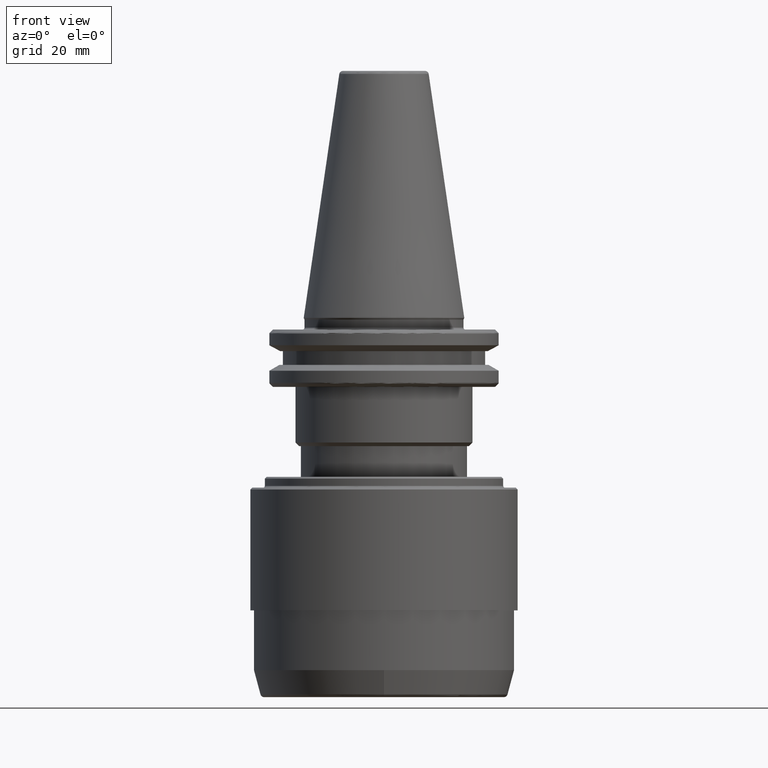
[diagram: clean part render]
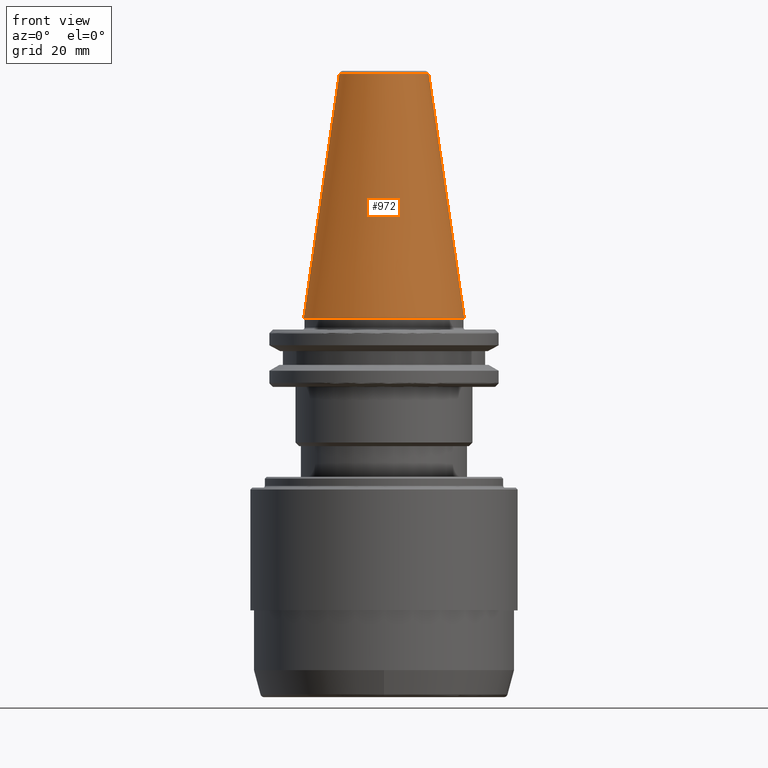
[diagram: same view with one face highlighted and labeled with its STEP entity id]
A machine part, front view. The second image highlights one B-rep face of the part: STEP entity #972.
In plain terms, the highlighted conical surface has half-angle 8.297 deg.
Its self-contained STEP definition (entity closure, byte-faithful):
#211 = DIRECTION ( 'NONE',  ( 0.0000000000000000000, 0.0000000000000000000, -1.000000000000000000 ) ) ;
#257 = DIRECTION ( 'NONE',  ( -1.000000000000000000, 0.0000000000000000000, 0.0000000000000000000 ) ) ;
#521 = CARTESIAN_POINT ( 'NONE',  ( 0.0000000000000000000, 0.0000000000000000000, 0.0000000000000000000 ) ) ;
#574 = EDGE_CURVE ( 'NONE', #2180, #1596, #2056, .T. ) ;
#624 = CARTESIAN_POINT ( 'NONE',  ( -12.37469537611110800, 0.0000000000000000000, 67.54430822726729400 ) ) ;
#696 = CARTESIAN_POINT ( 'NONE',  ( 12.37469537611110800, 2.118620309691396900E-015, 67.54430822726729400 ) ) ;
#803 = EDGE_CURVE ( 'NONE', #1272, #1596, #3130, .T. ) ;
#840 = DIRECTION ( 'NONE',  ( 0.1443082272673070500, 1.767266086135363700E-017, -0.9895327864921743500 ) ) ;
#884 = CARTESIAN_POINT ( 'NONE',  ( 22.22500000000000100, 2.721777511104992800E-015, 0.0000000000000000000 ) ) ;
#972 = ADVANCED_FACE ( 'NONE', ( #2712 ), #3331, .T. ) ;
#1002 = ORIENTED_EDGE ( 'NONE', *, *, #574, .F. ) ;
#1044 = CARTESIAN_POINT ( 'NONE',  ( 0.0000000000000000000, 0.0000000000000000000, 67.54430822726729400 ) ) ;
#1107 = ORIENTED_EDGE ( 'NONE', *, *, #3111, .T. ) ;
#1272 = VERTEX_POINT ( 'NONE', #2844 ) ;
#1276 = DIRECTION ( 'NONE',  ( -1.000000000000000000, 0.0000000000000000000, 6.244223985518314900E-016 ) ) ;
#1286 = DIRECTION ( 'NONE',  ( -0.0000000000000000000, -0.0000000000000000000, 1.000000000000000000 ) ) ;
#1290 = CARTESIAN_POINT ( 'NONE',  ( 0.0000000000000000000, 0.0000000000000000000, 0.0000000000000000000 ) ) ;
#1317 = DIRECTION ( 'NONE',  ( -1.000000000000000000, 0.0000000000000000000, 0.0000000000000000000 ) ) ;
#1321 = AXIS2_PLACEMENT_3D ( 'NONE', #521, #211, #257 ) ;
#1438 = CIRCLE ( 'NONE', #2558, 12.37469537611110800 ) ;
#1476 = ORIENTED_EDGE ( 'NONE', *, *, #2699, .T. ) ;
#1587 = DIRECTION ( 'NONE',  ( -0.1443082272673070500, 0.0000000000000000000, -0.9895327864921743500 ) ) ;
#1596 = VERTEX_POINT ( 'NONE', #2346 ) ;
#1832 = CARTESIAN_POINT ( 'NONE',  ( -22.22500000000000100, 0.0000000000000000000, 0.0000000000000000000 ) ) ;
#1884 = VERTEX_POINT ( 'NONE', #624 ) ;
#2056 = LINE ( 'NONE', #884, #3491 ) ;
#2073 = VECTOR ( 'NONE', #1587, 1000.000000000000000 ) ;
#2154 = LINE ( 'NONE', #1832, #2073 ) ;
#2180 = VERTEX_POINT ( 'NONE', #696 ) ;
#2346 = CARTESIAN_POINT ( 'NONE',  ( 22.22500000000000500, 0.0000000000000000000, 0.0000000000000000000 ) ) ;
#2558 = AXIS2_PLACEMENT_3D ( 'NONE', #1044, #2897, #1317 ) ;
#2699 = EDGE_CURVE ( 'NONE', #2180, #1884, #1438, .T. ) ;
#2712 = FACE_OUTER_BOUND ( 'NONE', #2990, .T. ) ;
#2792 = AXIS2_PLACEMENT_3D ( 'NONE', #1290, #1286, #1276 ) ;
#2844 = CARTESIAN_POINT ( 'NONE',  ( -22.22500000000000500, 2.721777511104993200E-015, 0.0000000000000000000 ) ) ;
#2897 = DIRECTION ( 'NONE',  ( 0.0000000000000000000, 0.0000000000000000000, -1.000000000000000000 ) ) ;
#2990 = EDGE_LOOP ( 'NONE', ( #1002, #1476, #1107, #3043 ) ) ;
#3043 = ORIENTED_EDGE ( 'NONE', *, *, #803, .T. ) ;
#3111 = EDGE_CURVE ( 'NONE', #1884, #1272, #2154, .T. ) ;
#3130 = CIRCLE ( 'NONE', #2792, 22.22500000000000100 ) ;
#3331 = CONICAL_SURFACE ( 'NONE', #1321, 22.22500000000000100, 0.1448138465474190500 ) ;
#3491 = VECTOR ( 'NONE', #840, 1000.000000000000000 ) ;